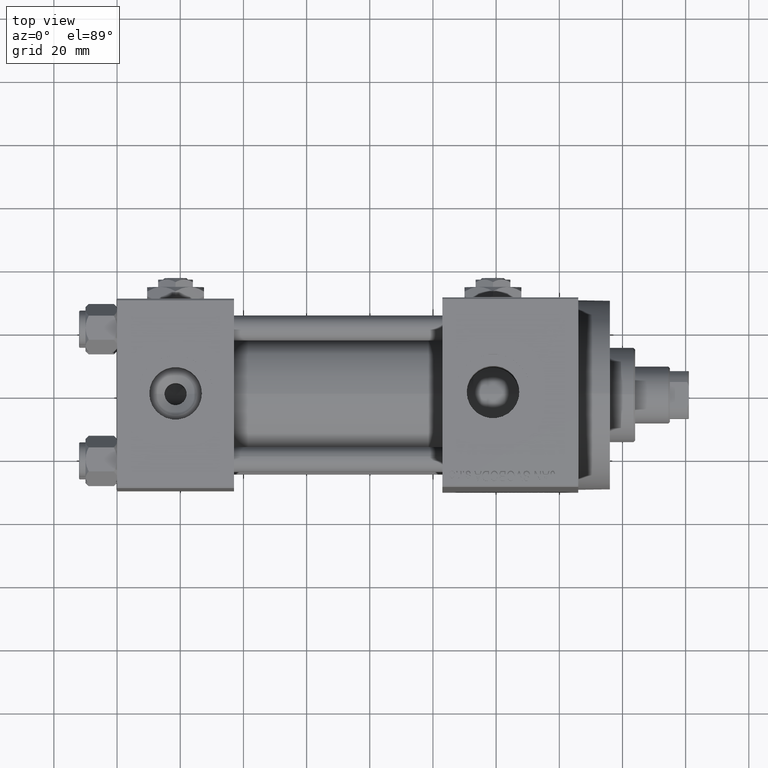
[diagram: clean part render]
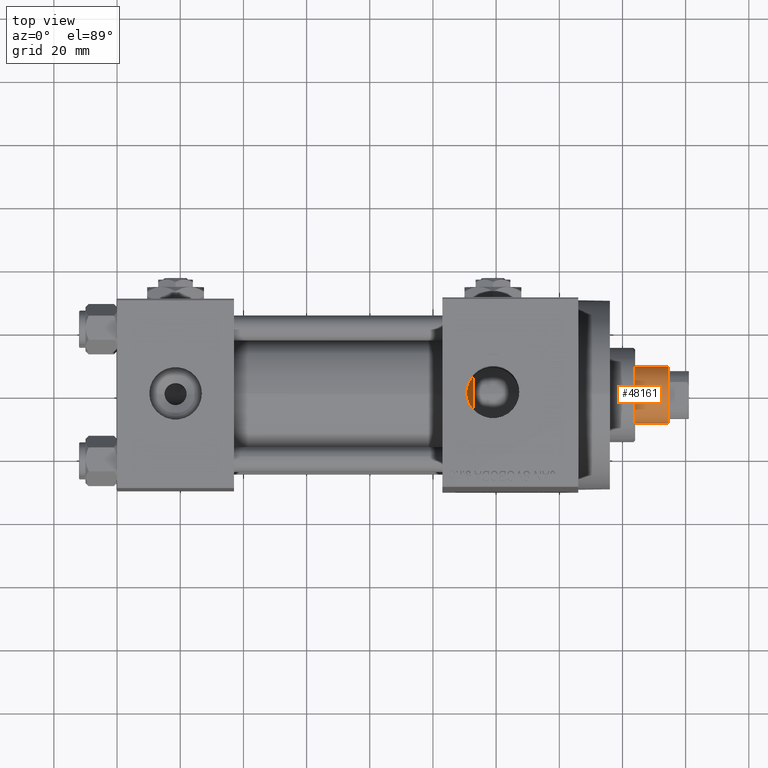
[diagram: same view with one face highlighted and labeled with its STEP entity id]
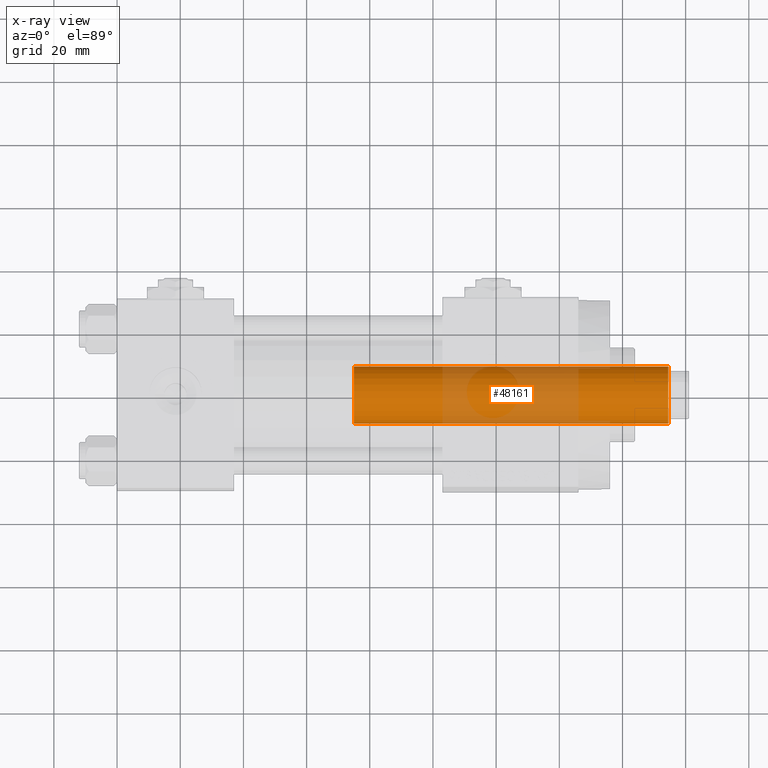
[diagram: x-ray of the same camera — body ghosted, the highlighted face saturated]
A machine part, top view. The second image highlights one B-rep face of the part: STEP entity #48161.
The next image is the same camera in x-ray: the body ghosted, the highlighted face saturated — about 33% of this face is hidden behind the body in this view.
In plain terms, the highlighted cylindrical surface (edge-blend (fillet) strip) has radius 9 mm, axis along (-1, 0, 0).
Its self-contained STEP definition (entity closure, byte-faithful):
#1843 = LINE ( 'NONE', #21028, #44790 ) ;
#2347 = DIRECTION ( 'NONE',  ( 0.000000000000000000, 0.000000000000000000, -1.000000000000000000 ) ) ;
#2964 = EDGE_CURVE ( 'NONE', #27484, #24875, #4777, .T. ) ;
#4439 = CIRCLE ( 'NONE', #44236, 9.000000000000000000 ) ;
#4777 = CIRCLE ( 'NONE', #32671, 9.000000000000000000 ) ;
#4829 = EDGE_LOOP ( 'NONE', ( #16971, #35963, #44889, #11651 ) ) ;
#5084 = CARTESIAN_POINT ( 'NONE',  ( 0.000000000000000000, 0.000000000000000000, 137.5000000000000284 ) ) ;
#6864 = CARTESIAN_POINT ( 'NONE',  ( -9.000000000000000000, 0.000000000000000000, 138.0000000000000000 ) ) ;
#7028 = CARTESIAN_POINT ( 'NONE',  ( 0.000000000000000000, 0.000000000000000000, 138.0000000000000000 ) ) ;
#8597 = DIRECTION ( 'NONE',  ( 1.000000000000000000, 0.000000000000000000, 0.000000000000000000 ) ) ;
#11556 = EDGE_CURVE ( 'NONE', #15106, #24875, #1843, .T. ) ;
#11651 = ORIENTED_EDGE ( 'NONE', *, *, #2964, .T. ) ;
#15106 = VERTEX_POINT ( 'NONE', #28804 ) ;
#16495 = AXIS2_PLACEMENT_3D ( 'NONE', #7028, #33213, #22477 ) ;
#16971 = ORIENTED_EDGE ( 'NONE', *, *, #11556, .F. ) ;
#18270 = CARTESIAN_POINT ( 'NONE',  ( -9.000000000000000000, 0.000000000000000000, 38.00000000000000000 ) ) ;
#19671 = CARTESIAN_POINT ( 'NONE',  ( 9.000000000000000000, 1.102182119232617714E-15, 38.00000000000000000 ) ) ;
#19829 = CARTESIAN_POINT ( 'NONE',  ( 0.000000000000000000, 0.000000000000000000, 38.00000000000000000 ) ) ;
#20290 = VERTEX_POINT ( 'NONE', #35046 ) ;
#21028 = CARTESIAN_POINT ( 'NONE',  ( 9.000000000000000000, 1.102182119232617714E-15, 138.0000000000000000 ) ) ;
#22477 = DIRECTION ( 'NONE',  ( -1.000000000000000000, 0.000000000000000000, 0.000000000000000000 ) ) ;
#23519 = DIRECTION ( 'NONE',  ( -0.000000000000000000, -0.000000000000000000, -1.000000000000000000 ) ) ;
#24875 = VERTEX_POINT ( 'NONE', #19671 ) ;
#25532 = DIRECTION ( 'NONE',  ( 1.000000000000000000, 0.000000000000000000, 0.000000000000000000 ) ) ;
#27315 = EDGE_CURVE ( 'NONE', #20290, #27484, #29318, .T. ) ;
#27484 = VERTEX_POINT ( 'NONE', #18270 ) ;
#28804 = CARTESIAN_POINT ( 'NONE',  ( 9.000000000000000000, 1.102182119232617714E-15, 137.5000000000000284 ) ) ;
#29318 = LINE ( 'NONE', #6864, #35668 ) ;
#31538 = DIRECTION ( 'NONE',  ( 0.000000000000000000, 0.000000000000000000, 1.000000000000000000 ) ) ;
#32671 = AXIS2_PLACEMENT_3D ( 'NONE', #19829, #31538, #8597 ) ;
#33213 = DIRECTION ( 'NONE',  ( -0.000000000000000000, -0.000000000000000000, -1.000000000000000000 ) ) ;
#35046 = CARTESIAN_POINT ( 'NONE',  ( -9.000000000000000000, 0.000000000000000000, 137.5000000000000284 ) ) ;
#35668 = VECTOR ( 'NONE', #23519, 1000.000000000000000 ) ;
#35963 = ORIENTED_EDGE ( 'NONE', *, *, #41080, .T. ) ;
#39732 = DIRECTION ( 'NONE',  ( -0.000000000000000000, -0.000000000000000000, -1.000000000000000000 ) ) ;
#39954 = FACE_OUTER_BOUND ( 'NONE', #4829, .T. ) ;
#41080 = EDGE_CURVE ( 'NONE', #15106, #20290, #4439, .T. ) ;
#44236 = AXIS2_PLACEMENT_3D ( 'NONE', #5084, #2347, #25532 ) ;
#44790 = VECTOR ( 'NONE', #39732, 1000.000000000000000 ) ;
#44889 = ORIENTED_EDGE ( 'NONE', *, *, #27315, .T. ) ;
#48161 = ADVANCED_FACE ( 'NONE', ( #39954 ), #48169, .T. ) ;
#48169 = CYLINDRICAL_SURFACE ( 'NONE', #16495, 9.000000000000000000 ) ;